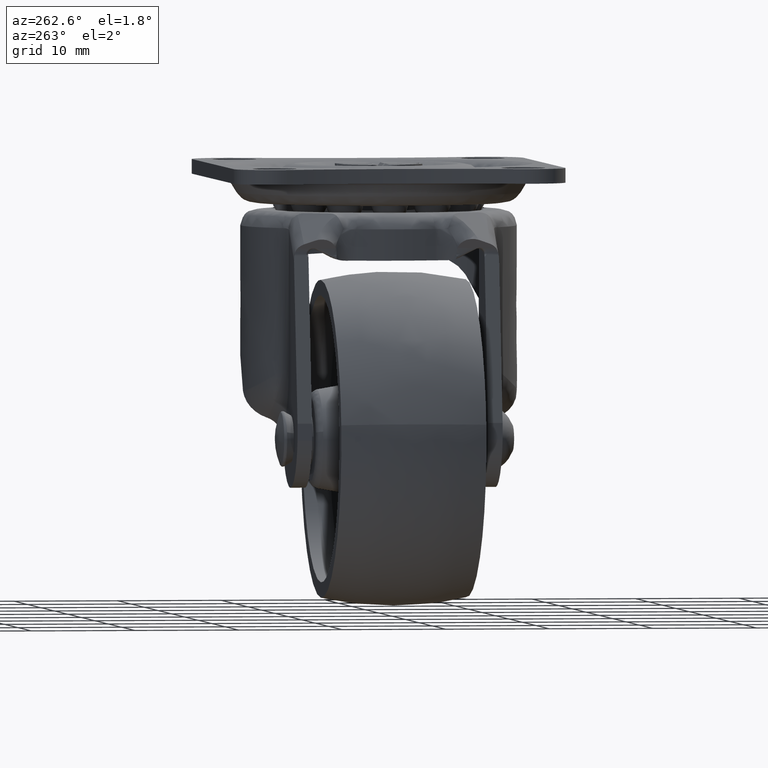
[diagram: clean part render]
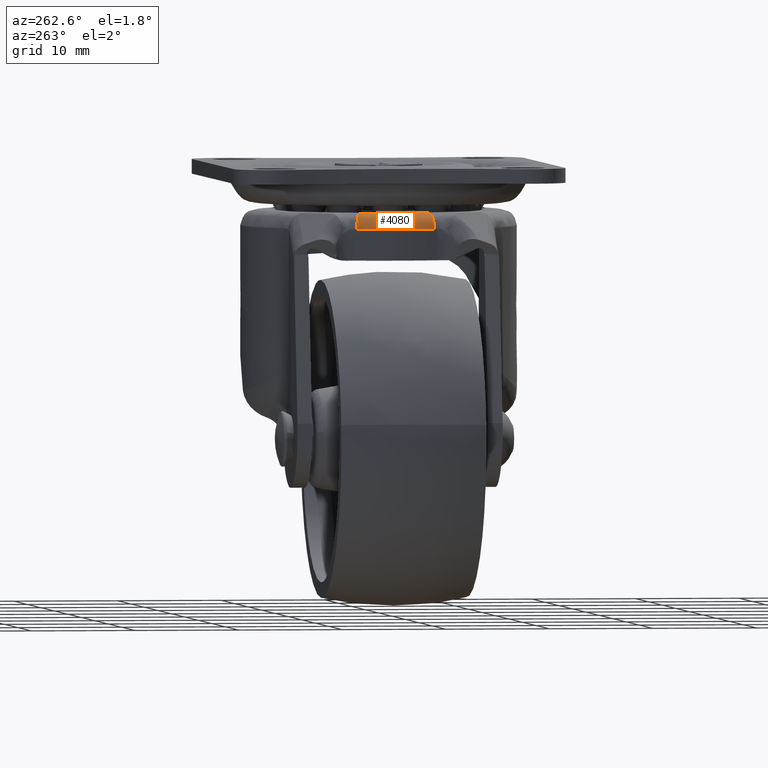
[diagram: same view with one face highlighted and labeled with its STEP entity id]
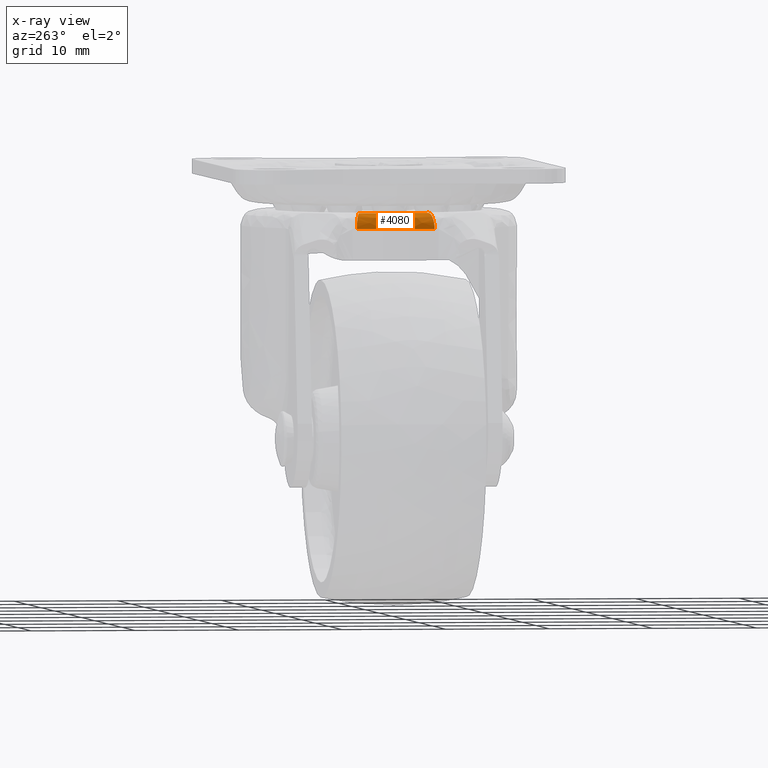
[diagram: x-ray of the same camera — body ghosted, the highlighted face saturated]
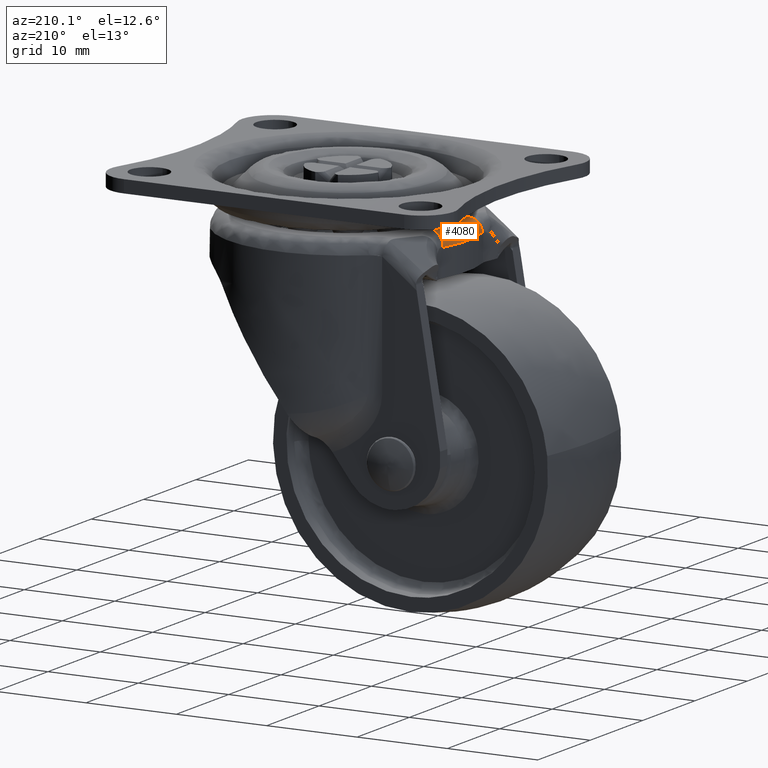
[diagram: same view with one face highlighted and labeled with its STEP entity id]
A machine part, auxiliary view. The second image highlights one B-rep face of the part: STEP entity #4080.
The next image is the same camera in x-ray: the body ghosted, the highlighted face saturated — about 0% of this face is hidden behind the body in this view.
A second angle (auxiliary view) of the same face is appended — the face is thin or edge-on in the first view.
In plain terms, the highlighted face is a freeform B-spline surface patch.
Its self-contained STEP definition (entity closure, byte-faithful):
#3953=CARTESIAN_POINT('',(-11.267805554150859,-3.331524875165600,-4.400000000000090));
#3954=VERTEX_POINT('',#3953);
#3955=CARTESIAN_POINT('',(-12.706248816382899,-3.756825923059085,-5.900000000000000));
#3956=VERTEX_POINT('',#3955);
#3957=CARTESIAN_POINT('',(-11.267805554150859,-3.331524875165600,-4.400000000000089));
#3958=CARTESIAN_POINT('',(-12.706248816382884,-3.756825923059082,-4.400000000000088));
#3959=CARTESIAN_POINT('',(-12.706248816382899,-3.756825923059085,-5.900000000000000));
#3967=(BOUNDED_CURVE()B_SPLINE_CURVE(2,(#3957,#3958,#3959),.UNSPECIFIED.,.F.,.U.)CURVE()GEOMETRIC_REPRESENTATION_ITEM()QUASI_UNIFORM_CURVE()RATIONAL_B_SPLINE_CURVE((1.0,0.707106781186548,1.0))REPRESENTATION_ITEM(''));
#3968=EDGE_CURVE('',#3954,#3956,#3967,.T.);
#4017=CARTESIAN_POINT('',(-12.591567149971953,4.113301049911401,-6.004025946709291));
#4018=CARTESIAN_POINT('',(-13.935263714957509,5.162164E-016,-6.004025946709291));
#4019=CARTESIAN_POINT('',(-12.591567149971953,-4.113301049911400,-6.004025946709291));
#4020=CARTESIAN_POINT('',(-12.705269244216037,4.150444237733925,-4.283390531071132));
#4021=CARTESIAN_POINT('',(-14.061099415102094,6.532939E-016,-4.283390531071133));
#4022=CARTESIAN_POINT('',(-12.705269244216037,-4.150444237733924,-4.283390531071132));
#4023=CARTESIAN_POINT('',(-11.069734373130894,3.616162267723842,-4.403650575026116));
#4024=CARTESIAN_POINT('',(-12.251030066932719,5.176622E-016,-4.403650575026115));
#4025=CARTESIAN_POINT('',(-11.069734373130895,-3.616162267723842,-4.403650575026116));
#4033=(BOUNDED_SURFACE()B_SPLINE_SURFACE(2,2,((#4017,#4020,#4023),(#4018,#4021,#4024),(#4019,#4022,#4025)),.UNSPECIFIED.,.F.,.F.,.U.)B_SPLINE_SURFACE_WITH_KNOTS((3,3),(3,3),(0.0,8.435092079660233),(0.0,2.733556222973917),.UNSPECIFIED.)GEOMETRIC_REPRESENTATION_ITEM()RATIONAL_B_SPLINE_SURFACE(((0.866973419268718,0.567351453444479,0.862171233347155),(0.824115494542849,0.539305027401400,0.819550699662547),(0.866973419268718,0.567351453444479,0.862171233347155)))REPRESENTATION_ITEM('')SURFACE());
#4034=CARTESIAN_POINT('',(-11.267805554150859,3.331524875165600,-4.400000000000090));
#4035=VERTEX_POINT('',#4034);
#4036=CARTESIAN_POINT('',(-12.706248816382899,3.756825923059080,-5.900000000000000));
#4037=VERTEX_POINT('',#4036);
#4038=CARTESIAN_POINT('',(-11.267805554150859,3.331524875165600,-4.400000000000089));
#4039=CARTESIAN_POINT('',(-12.706248816382884,3.756825923059082,-4.400000000000088));
#4040=CARTESIAN_POINT('',(-12.706248816382899,3.756825923059080,-5.900000000000000));
#4048=(BOUNDED_CURVE()B_SPLINE_CURVE(2,(#4038,#4039,#4040),.UNSPECIFIED.,.F.,.U.)CURVE()GEOMETRIC_REPRESENTATION_ITEM()QUASI_UNIFORM_CURVE()RATIONAL_B_SPLINE_CURVE((1.0,0.707106781186548,1.0))REPRESENTATION_ITEM(''));
#4049=EDGE_CURVE('',#4035,#4037,#4048,.T.);
#4050=ORIENTED_EDGE('',*,*,#4049,.T.);
#4051=CARTESIAN_POINT('',(-12.706248816382899,-3.756825923059085,-5.900000000000000));
#4052=CARTESIAN_POINT('',(-13.817020470560728,-3.035766E-015,-5.900000000000130));
#4053=CARTESIAN_POINT('',(-12.706248816382899,3.756825923059080,-5.900000000000000));
#4061=(BOUNDED_CURVE()B_SPLINE_CURVE(2,(#4051,#4052,#4053),.UNSPECIFIED.,.F.,.U.)CURVE()GEOMETRIC_REPRESENTATION_ITEM()QUASI_UNIFORM_CURVE()RATIONAL_B_SPLINE_CURVE((1.0,0.958962174821349,1.0))REPRESENTATION_ITEM(''));
#4062=EDGE_CURVE('',#3956,#4037,#4061,.T.);
#4063=ORIENTED_EDGE('',*,*,#4062,.F.);
#4064=ORIENTED_EDGE('',*,*,#3968,.F.);
#4065=CARTESIAN_POINT('',(-11.267805554150870,3.331524875165604,-4.400000000000090));
#4066=CARTESIAN_POINT('',(-12.252829473893478,-4.336809E-016,-4.400000000000090));
#4067=CARTESIAN_POINT('',(-11.267805554150870,-3.331524875165601,-4.400000000000090));
#4075=(BOUNDED_CURVE()B_SPLINE_CURVE(2,(#4065,#4066,#4067),.UNSPECIFIED.,.F.,.U.)CURVE()GEOMETRIC_REPRESENTATION_ITEM()QUASI_UNIFORM_CURVE()RATIONAL_B_SPLINE_CURVE((1.0,0.958962174821349,1.0))REPRESENTATION_ITEM(''));
#4076=EDGE_CURVE('',#4035,#3954,#4075,.T.);
#4077=ORIENTED_EDGE('',*,*,#4076,.F.);
#4078=EDGE_LOOP('',(#4050,#4063,#4064,#4077));
#4079=FACE_OUTER_BOUND('',#4078,.T.);
#4080=ADVANCED_FACE('',(#4079),#4033,.T.);